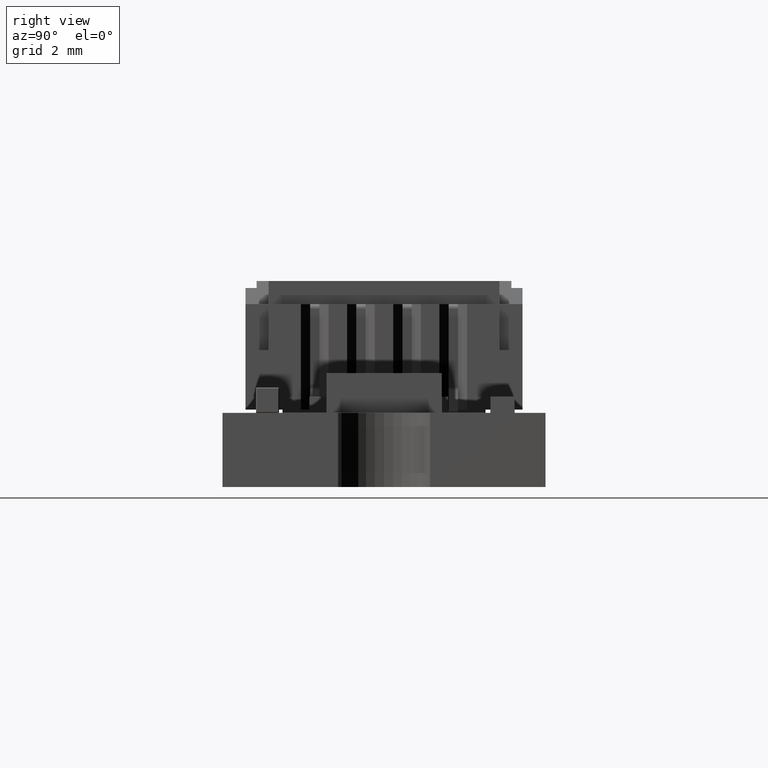
[diagram: clean part render]
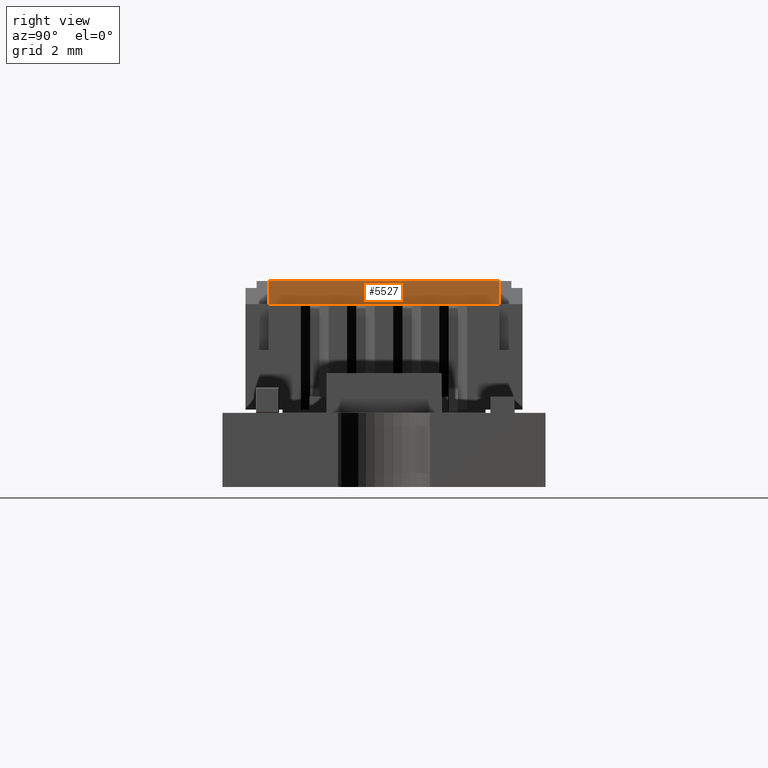
[diagram: same view with one face highlighted and labeled with its STEP entity id]
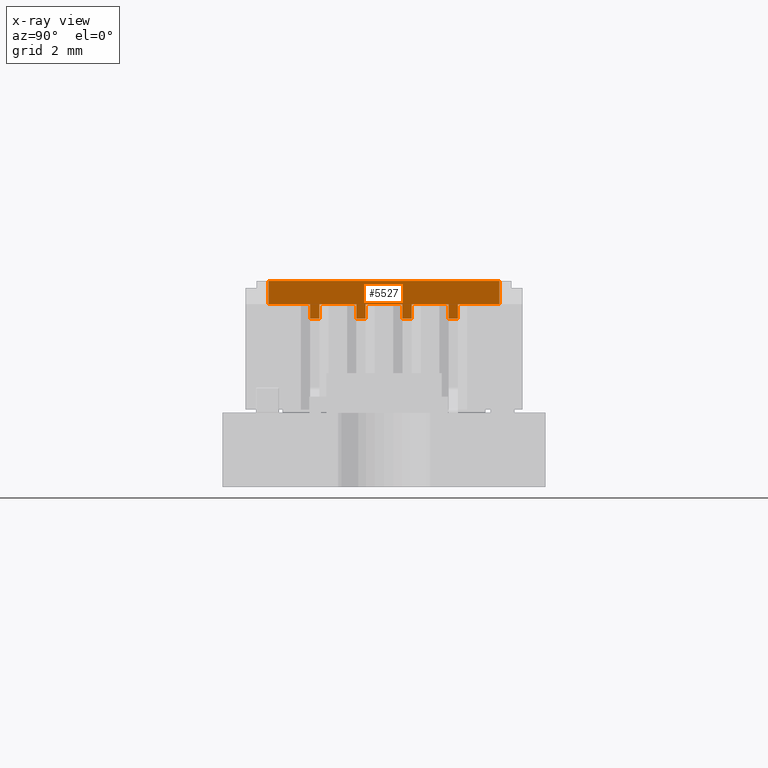
[diagram: x-ray of the same camera — body ghosted, the highlighted face saturated]
A machine part, right view. The second image highlights one B-rep face of the part: STEP entity #5527.
The next image is the same camera in x-ray: the body ghosted, the highlighted face saturated — about 0% of this face is hidden behind the body in this view.
In plain terms, the highlighted planar face has unit normal (-1, -0, -0).
Its self-contained STEP definition (entity closure, byte-faithful):
#5527 = ADVANCED_FACE('',(#5528),#5690,.F.);
#5528 = FACE_BOUND('',#5529,.T.);
#5529 = EDGE_LOOP('',(#5530,#5540,#5548,#5556,#5564,#5572,#5580,#5588,
    #5596,#5604,#5612,#5620,#5628,#5636,#5644,#5652,#5660,#5668,#5676,
    #5684));
#5530 = ORIENTED_EDGE('',*,*,#5531,.T.);
#5531 = EDGE_CURVE('',#5532,#5534,#5536,.T.);
#5532 = VERTEX_POINT('',#5533);
#5533 = CARTESIAN_POINT('',(-2.5,3.255,0.195));
#5534 = VERTEX_POINT('',#5535);
#5535 = CARTESIAN_POINT('',(2.5,3.255,0.195));
#5536 = LINE('',#5537,#5538);
#5537 = CARTESIAN_POINT('',(-3.,3.255,0.195));
#5538 = VECTOR('',#5539,1.);
#5539 = DIRECTION('',(1.,0.,-6.982966722219E-15));
#5540 = ORIENTED_EDGE('',*,*,#5541,.T.);
#5541 = EDGE_CURVE('',#5534,#5542,#5544,.T.);
#5542 = VERTEX_POINT('',#5543);
#5543 = CARTESIAN_POINT('',(2.5,2.755,0.195));
#5544 = LINE('',#5545,#5546);
#5545 = CARTESIAN_POINT('',(2.5,3.255,0.195));
#5546 = VECTOR('',#5547,1.);
#5547 = DIRECTION('',(0.,-1.,0.));
#5548 = ORIENTED_EDGE('',*,*,#5549,.F.);
#5549 = EDGE_CURVE('',#5550,#5542,#5552,.T.);
#5550 = VERTEX_POINT('',#5551);
#5551 = CARTESIAN_POINT('',(1.6,2.755,0.195));
#5552 = LINE('',#5553,#5554);
#5553 = CARTESIAN_POINT('',(-4.,2.755,0.195));
#5554 = VECTOR('',#5555,1.);
#5555 = DIRECTION('',(1.,5.605193857299E-45,-6.982966722219E-15));
#5556 = ORIENTED_EDGE('',*,*,#5557,.T.);
#5557 = EDGE_CURVE('',#5550,#5558,#5560,.T.);
#5558 = VERTEX_POINT('',#5559);
#5559 = CARTESIAN_POINT('',(1.6,2.435,0.195));
#5560 = LINE('',#5561,#5562);
#5561 = CARTESIAN_POINT('',(1.6,2.755,0.195));
#5562 = VECTOR('',#5563,1.);
#5563 = DIRECTION('',(0.,-1.,1.186216818912E-17));
#5564 = ORIENTED_EDGE('',*,*,#5565,.F.);
#5565 = EDGE_CURVE('',#5566,#5558,#5568,.T.);
#5566 = VERTEX_POINT('',#5567);
#5567 = CARTESIAN_POINT('',(1.4,2.435,0.195));
#5568 = LINE('',#5569,#5570);
#5569 = CARTESIAN_POINT('',(1.4,2.435,0.195));
#5570 = VECTOR('',#5571,1.);
#5571 = DIRECTION('',(1.,5.605193857299E-45,-6.982966722219E-15));
#5572 = ORIENTED_EDGE('',*,*,#5573,.F.);
#5573 = EDGE_CURVE('',#5574,#5566,#5576,.T.);
#5574 = VERTEX_POINT('',#5575);
#5575 = CARTESIAN_POINT('',(1.4,2.755,0.195));
#5576 = LINE('',#5577,#5578);
#5577 = CARTESIAN_POINT('',(1.4,2.755,0.195));
#5578 = VECTOR('',#5579,1.);
#5579 = DIRECTION('',(0.,-1.,1.186216818912E-17));
#5580 = ORIENTED_EDGE('',*,*,#5581,.F.);
#5581 = EDGE_CURVE('',#5582,#5574,#5584,.T.);
#5582 = VERTEX_POINT('',#5583);
#5583 = CARTESIAN_POINT('',(0.6,2.755,0.195));
#5584 = LINE('',#5585,#5586);
#5585 = CARTESIAN_POINT('',(-4.,2.755,0.195));
#5586 = VECTOR('',#5587,1.);
#5587 = DIRECTION('',(1.,5.605193857299E-45,-6.982966722219E-15));
#5588 = ORIENTED_EDGE('',*,*,#5589,.T.);
#5589 = EDGE_CURVE('',#5582,#5590,#5592,.T.);
#5590 = VERTEX_POINT('',#5591);
#5591 = CARTESIAN_POINT('',(0.6,2.435,0.195));
#5592 = LINE('',#5593,#5594);
#5593 = CARTESIAN_POINT('',(0.6,2.755,0.195));
#5594 = VECTOR('',#5595,1.);
#5595 = DIRECTION('',(0.,-1.,1.186216818912E-17));
#5596 = ORIENTED_EDGE('',*,*,#5597,.F.);
#5597 = EDGE_CURVE('',#5598,#5590,#5600,.T.);
#5598 = VERTEX_POINT('',#5599);
#5599 = CARTESIAN_POINT('',(0.4,2.435,0.195));
#5600 = LINE('',#5601,#5602);
#5601 = CARTESIAN_POINT('',(0.4,2.435,0.195));
#5602 = VECTOR('',#5603,1.);
#5603 = DIRECTION('',(1.,5.605193857299E-45,-6.982966722219E-15));
#5604 = ORIENTED_EDGE('',*,*,#5605,.F.);
#5605 = EDGE_CURVE('',#5606,#5598,#5608,.T.);
#5606 = VERTEX_POINT('',#5607);
#5607 = CARTESIAN_POINT('',(0.4,2.755,0.195));
#5608 = LINE('',#5609,#5610);
#5609 = CARTESIAN_POINT('',(0.4,2.755,0.195));
#5610 = VECTOR('',#5611,1.);
#5611 = DIRECTION('',(0.,-1.,1.186216818912E-17));
#5612 = ORIENTED_EDGE('',*,*,#5613,.F.);
#5613 = EDGE_CURVE('',#5614,#5606,#5616,.T.);
#5614 = VERTEX_POINT('',#5615);
#5615 = CARTESIAN_POINT('',(-0.4,2.755,0.195));
#5616 = LINE('',#5617,#5618);
#5617 = CARTESIAN_POINT('',(-3.,2.755,0.195));
#5618 = VECTOR('',#5619,1.);
#5619 = DIRECTION('',(1.,5.605193857299E-45,-6.982966722219E-15));
#5620 = ORIENTED_EDGE('',*,*,#5621,.T.);
#5621 = EDGE_CURVE('',#5614,#5622,#5624,.T.);
#5622 = VERTEX_POINT('',#5623);
#5623 = CARTESIAN_POINT('',(-0.4,2.435,0.195));
#5624 = LINE('',#5625,#5626);
#5625 = CARTESIAN_POINT('',(-0.4,2.755,0.195));
#5626 = VECTOR('',#5627,1.);
#5627 = DIRECTION('',(0.,-1.,1.186216818912E-17));
#5628 = ORIENTED_EDGE('',*,*,#5629,.F.);
#5629 = EDGE_CURVE('',#5630,#5622,#5632,.T.);
#5630 = VERTEX_POINT('',#5631);
#5631 = CARTESIAN_POINT('',(-0.6,2.435,0.195));
#5632 = LINE('',#5633,#5634);
#5633 = CARTESIAN_POINT('',(-0.6,2.435,0.195));
#5634 = VECTOR('',#5635,1.);
#5635 = DIRECTION('',(1.,5.605193857299E-45,-6.982966722219E-15));
#5636 = ORIENTED_EDGE('',*,*,#5637,.F.);
#5637 = EDGE_CURVE('',#5638,#5630,#5640,.T.);
#5638 = VERTEX_POINT('',#5639);
#5639 = CARTESIAN_POINT('',(-0.6,2.755,0.195));
#5640 = LINE('',#5641,#5642);
#5641 = CARTESIAN_POINT('',(-0.6,2.755,0.195));
#5642 = VECTOR('',#5643,1.);
#5643 = DIRECTION('',(0.,-1.,1.186216818912E-17));
#5644 = ORIENTED_EDGE('',*,*,#5645,.F.);
#5645 = EDGE_CURVE('',#5646,#5638,#5648,.T.);
#5646 = VERTEX_POINT('',#5647);
#5647 = CARTESIAN_POINT('',(-1.4,2.755,0.195));
#5648 = LINE('',#5649,#5650);
#5649 = CARTESIAN_POINT('',(-3.,2.755,0.195));
#5650 = VECTOR('',#5651,1.);
#5651 = DIRECTION('',(1.,5.605193857299E-45,-6.982966722219E-15));
#5652 = ORIENTED_EDGE('',*,*,#5653,.T.);
#5653 = EDGE_CURVE('',#5646,#5654,#5656,.T.);
#5654 = VERTEX_POINT('',#5655);
#5655 = CARTESIAN_POINT('',(-1.4,2.435,0.195));
#5656 = LINE('',#5657,#5658);
#5657 = CARTESIAN_POINT('',(-1.4,2.755,0.195));
#5658 = VECTOR('',#5659,1.);
#5659 = DIRECTION('',(0.,-1.,1.186216818912E-17));
#5660 = ORIENTED_EDGE('',*,*,#5661,.F.);
#5661 = EDGE_CURVE('',#5662,#5654,#5664,.T.);
#5662 = VERTEX_POINT('',#5663);
#5663 = CARTESIAN_POINT('',(-1.6,2.435,0.195));
#5664 = LINE('',#5665,#5666);
#5665 = CARTESIAN_POINT('',(-1.6,2.435,0.195));
#5666 = VECTOR('',#5667,1.);
#5667 = DIRECTION('',(1.,5.605193857299E-45,-6.982966722219E-15));
#5668 = ORIENTED_EDGE('',*,*,#5669,.F.);
#5669 = EDGE_CURVE('',#5670,#5662,#5672,.T.);
#5670 = VERTEX_POINT('',#5671);
#5671 = CARTESIAN_POINT('',(-1.6,2.755,0.195));
#5672 = LINE('',#5673,#5674);
#5673 = CARTESIAN_POINT('',(-1.6,2.755,0.195));
#5674 = VECTOR('',#5675,1.);
#5675 = DIRECTION('',(0.,-1.,1.186216818912E-17));
#5676 = ORIENTED_EDGE('',*,*,#5677,.F.);
#5677 = EDGE_CURVE('',#5678,#5670,#5680,.T.);
#5678 = VERTEX_POINT('',#5679);
#5679 = CARTESIAN_POINT('',(-2.5,2.755,0.195));
#5680 = LINE('',#5681,#5682);
#5681 = CARTESIAN_POINT('',(-3.,2.755,0.195));
#5682 = VECTOR('',#5683,1.);
#5683 = DIRECTION('',(1.,5.605193857299E-45,-6.982966722219E-15));
#5684 = ORIENTED_EDGE('',*,*,#5685,.F.);
#5685 = EDGE_CURVE('',#5532,#5678,#5686,.T.);
#5686 = LINE('',#5687,#5688);
#5687 = CARTESIAN_POINT('',(-2.5,2.755,0.195));
#5688 = VECTOR('',#5689,1.);
#5689 = DIRECTION('',(5.605193857299E-45,-1.,-3.914088217711E-59));
#5690 = PLANE('',#5691);
#5691 = AXIS2_PLACEMENT_3D('',#5692,#5693,#5694);
#5692 = CARTESIAN_POINT('',(-3.,3.255,0.195));
#5693 = DIRECTION('',(6.982966722219E-15,0.,1.));
#5694 = DIRECTION('',(1.,0.,-6.982966722219E-15));